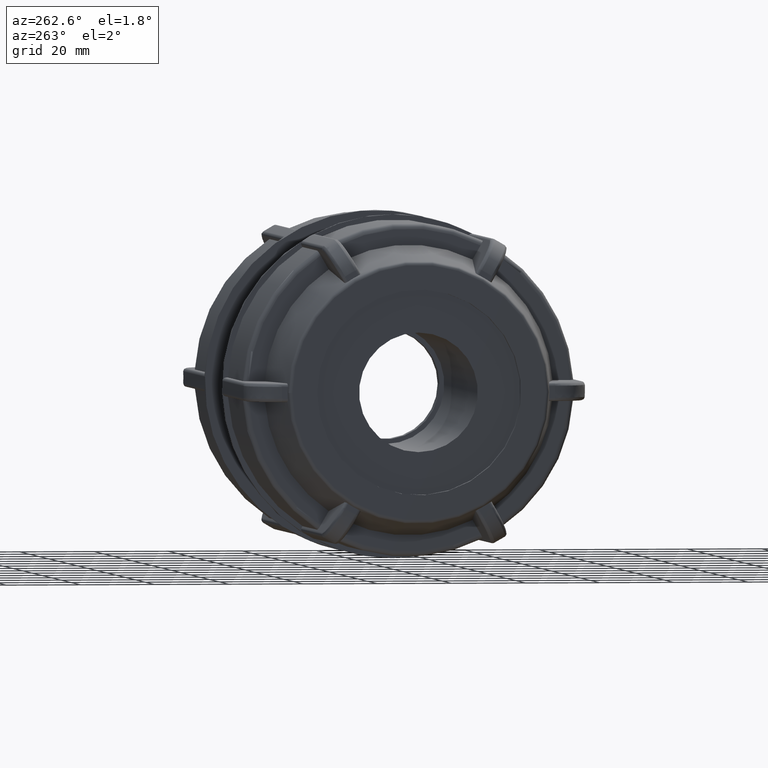
[diagram: clean part render]
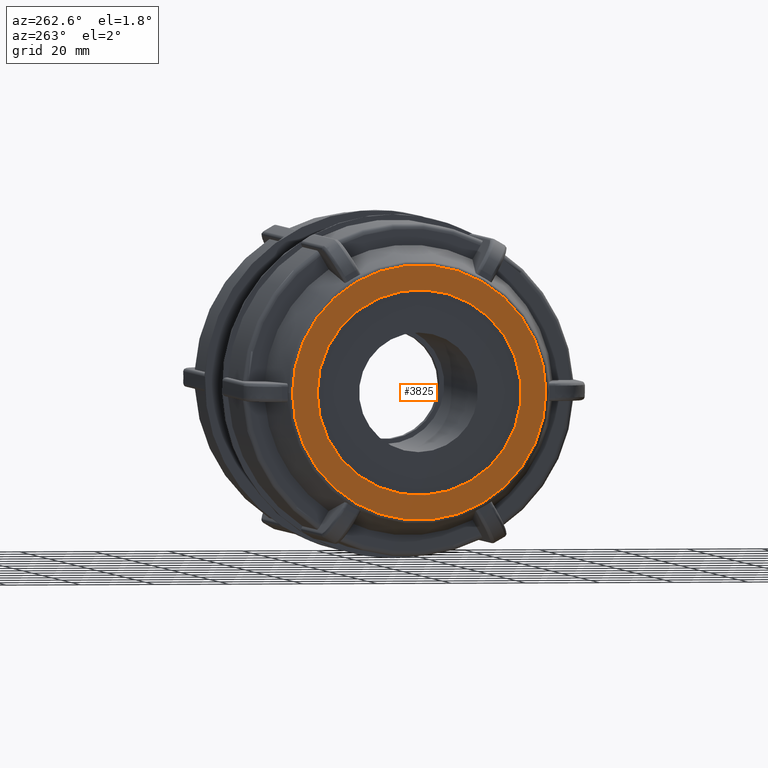
[diagram: same view with one face highlighted and labeled with its STEP entity id]
A machine part, auxiliary view. The second image highlights one B-rep face of the part: STEP entity #3825.
In plain terms, the highlighted planar face has unit normal (1, 0, 0).
Its self-contained STEP definition (entity closure, byte-faithful):
#204=FACE_BOUND('',#687,.T.);
#269=PLANE('',#4188);
#439=FACE_OUTER_BOUND('',#686,.T.);
#686=EDGE_LOOP('',(#3117));
#687=EDGE_LOOP('',(#3118));
#1388=CIRCLE('',#4185,34.1609003688227);
#1390=CIRCLE('',#4189,27.5);
#1707=VERTEX_POINT('',#6910);
#1709=VERTEX_POINT('',#6916);
#2204=EDGE_CURVE('',#1707,#1707,#1388,.T.);
#2206=EDGE_CURVE('',#1709,#1709,#1390,.T.);
#3117=ORIENTED_EDGE('',*,*,#2204,.F.);
#3118=ORIENTED_EDGE('',*,*,#2206,.T.);
#3825=ADVANCED_FACE('',(#439,#204),#269,.F.);
#4185=AXIS2_PLACEMENT_3D('',#6911,#5033,#5034);
#4188=AXIS2_PLACEMENT_3D('',#6915,#5039,#5040);
#4189=AXIS2_PLACEMENT_3D('',#6917,#5041,#5042);
#5033=DIRECTION('center_axis',(1.,3.06161699786838E-16,0.));
#5034=DIRECTION('ref_axis',(3.06161699786838E-16,-1.,1.83697019872103E-16));
#5039=DIRECTION('center_axis',(1.,3.06161699786838E-16,0.));
#5040=DIRECTION('ref_axis',(0.,0.,-1.));
#5041=DIRECTION('center_axis',(1.,3.06161699786838E-16,0.));
#5042=DIRECTION('ref_axis',(0.,0.,-1.));
#6910=CARTESIAN_POINT('',(-73.,34.1609003688227,-2.09175186463352E-15));
#6911=CARTESIAN_POINT('Origin',(-73.,-2.23498040844392E-14,0.));
#6915=CARTESIAN_POINT('Origin',(-73.,27.5,0.));
#6916=CARTESIAN_POINT('',(-73.,27.5,0.));
#6917=CARTESIAN_POINT('Origin',(-73.,-2.23498040844392E-14,0.));